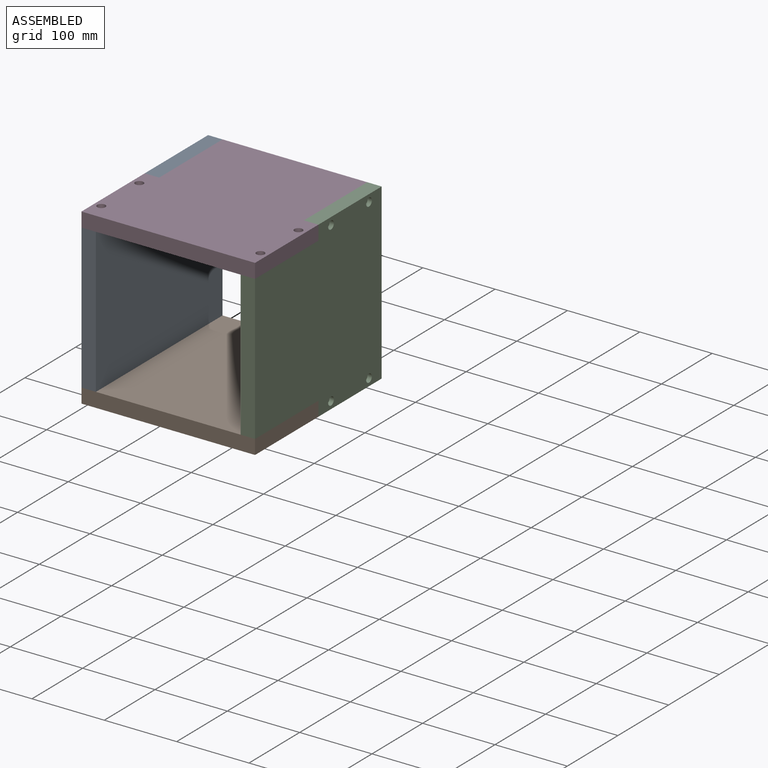
[diagram: assembled view]
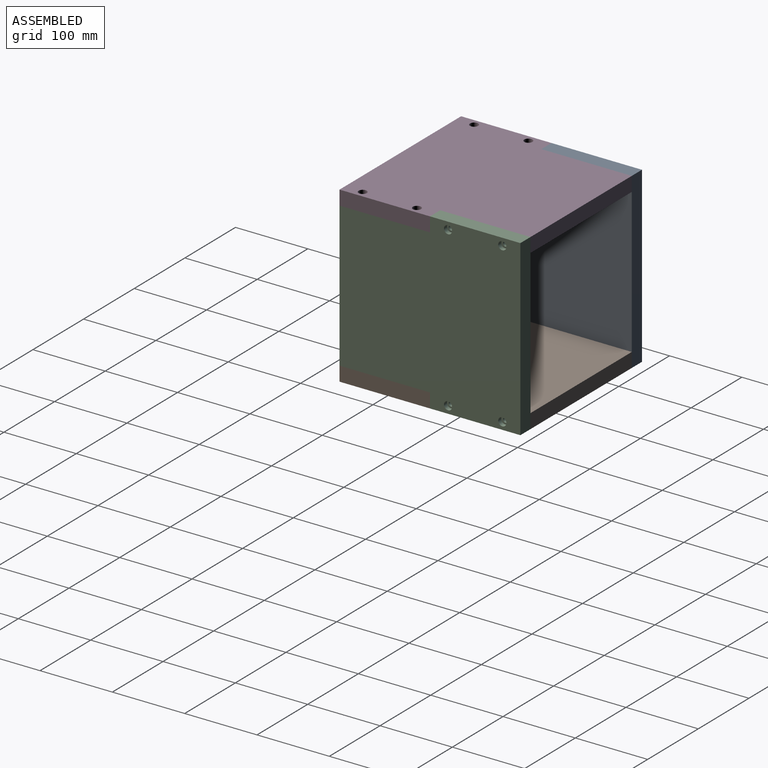
[diagram: assembled view, second angle]
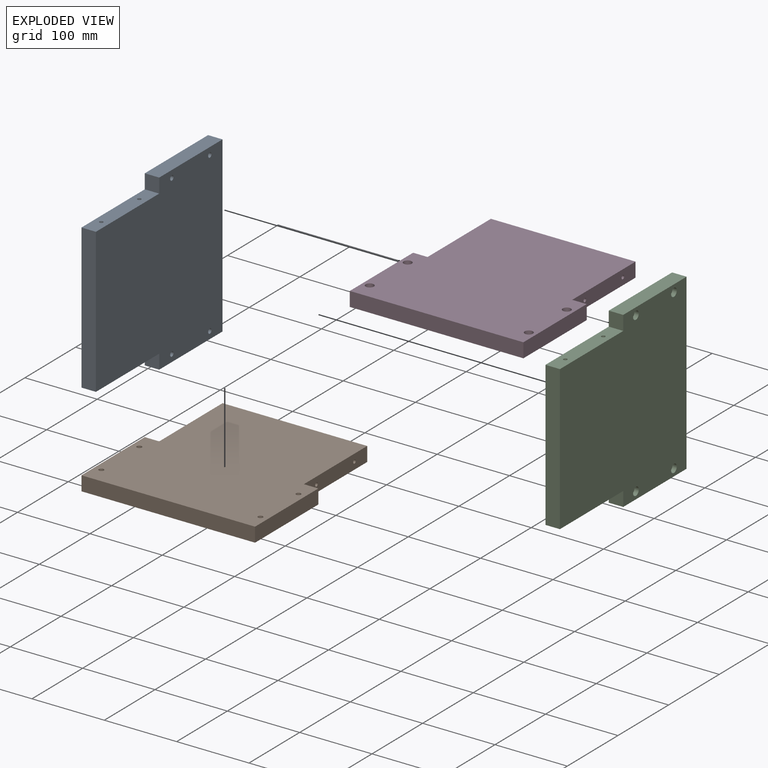
[diagram: exploded view]
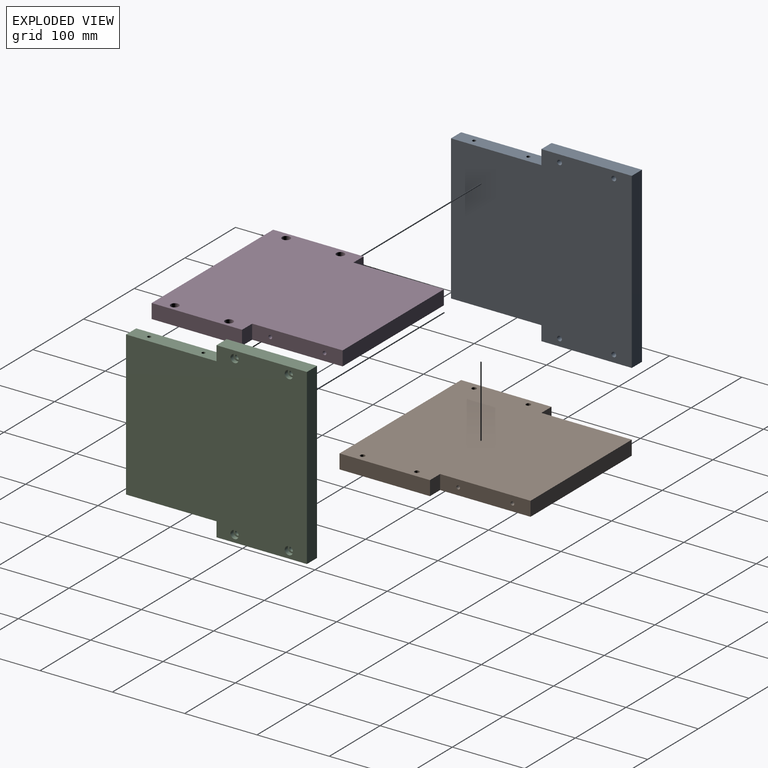
[diagram: exploded view, second angle]
ASSEMBLY  parts=4 mates=3
PART A: 30 faces, bbox 240x250x20 mm
  f0: plane 125x20mm, normal (1,0,0), area 2500mm2, adj f1,f4,f5,f6
  f1: plane 20x20mm, normal (0,1,0), area 400mm2, adj f0,f2,f5,f6
  f2: plane 125x20mm, normal (1,0,0), area 2460.7mm2, adj f1,f3,f5,f6,f8,f10
  f3: plane 200x20mm, normal (0,1,0), area 4000mm2, adj f2,f5,f6,f19
  f4: plane 240x20mm, normal (0,-1,0), area 4800mm2, adj f0,f5,f6,f17
  f5: plane 250x240mm, normal (0,0,1), area 54602.4mm2, adj f0,f1,f2,f3,f4,f13,f16,f17
  f6: plane 250x240mm, normal (0,0,-1), area 54863.2mm2, adj f0,f1,f2,f3,f4,f11,f14,f17
  f7: cone r=0mm half-angle=59deg, axis (1,0,0), area 22.9mm2, adj f8
  f8: cylinder r=2.5mm len=30mm, axis (1,0,0), area 471.2mm2, adj f2,f7
  f9: cone r=0mm half-angle=59deg, axis (1,0,0), area 22.9mm2, adj f10
  f10: cylinder r=2.5mm len=30mm, axis (1,0,0), area 471.2mm2, adj f2,f9
  f11: cylinder r=3.3mm len=14mm, axis (0,0,1), area 290.3mm2, adj f6,f12
  f12: plane 11.25x11.25mm, normal (0,0,1), area 65.2mm2, adj f11,f13
  f13: cylinder r=5.62mm len=11.25mm, axis (0,0,1), area 212.1mm2, adj f5,f12
  f14: cylinder r=3.3mm len=14mm, axis (0,0,1), area 290.3mm2, adj f6,f15
  f15: plane 11.25x11.25mm, normal (0,0,1), area 65.2mm2, adj f14,f16
  f16: cylinder r=5.62mm len=11.25mm, axis (0,0,1), area 212.1mm2, adj f5,f15
  f17: plane 125x20mm, normal (-1,0,0), area 2500mm2, adj f4,f5,f6,f18
  f18: plane 20x20mm, normal (0,1,0), area 400mm2, adj f5,f6,f17,f19
  f19: plane 125x20mm, normal (-1,0,0), area 2460.7mm2, adj f3,f5,f6,f18,f21,f23
  f20: cone r=0mm half-angle=59deg, axis (-1,0,0), area 22.9mm2, adj f21
  f21: cylinder r=2.5mm len=30mm, axis (-1,0,0), area 471.2mm2, adj f19,f20
  f22: cone r=0mm half-angle=59deg, axis (-1,0,0), area 22.9mm2, adj f23
  f23: cylinder r=2.5mm len=30mm, axis (-1,0,0), area 471.2mm2, adj f19,f22
  f24: cylinder r=3.3mm len=14mm, axis (0,0,1), area 290.3mm2, adj f6,f25
  f25: plane 11.25x11.25mm, normal (0,0,1), area 65.2mm2, adj f24,f26
  f26: cylinder r=5.62mm len=11.25mm, axis (0,0,1), area 212.1mm2, adj f5,f25
  f27: cylinder r=3.3mm len=14mm, axis (0,0,1), area 290.3mm2, adj f6,f28
  f28: plane 11.25x11.25mm, normal (0,0,1), area 65.2mm2, adj f27,f29
  f29: cylinder r=5.62mm len=11.25mm, axis (0,0,1), area 212.1mm2, adj f5,f28
PART B: same geometry as A
PART C: same geometry as A
PART D: same geometry as A
PLACE A rot(axis=(-0.71,0,0.71),180deg) t=(54.82,1.38,162.89)mm
PLACE B rot(axis=(0,1,0),180deg) t=(154.82,1.38,62.89)mm fixed
PLACE C rot(axis=(-0.71,0,-0.71),180deg) t=(254.82,1.38,162.89)mm
PLACE D t=(154.82,1.38,262.89)mm
MATE fastened D.f21 <-> A.f27  axis (-1,0,0) through (54.82,101.38,272.89)mm
MATE fastened B.f14 <-> A.f8  axis (0,0,1) through (44.82,-98.62,62.89)mm
MATE fastened C.f14 <-> D.f8  axis (-1,0,0) through (254.82,101.38,272.89)mm
